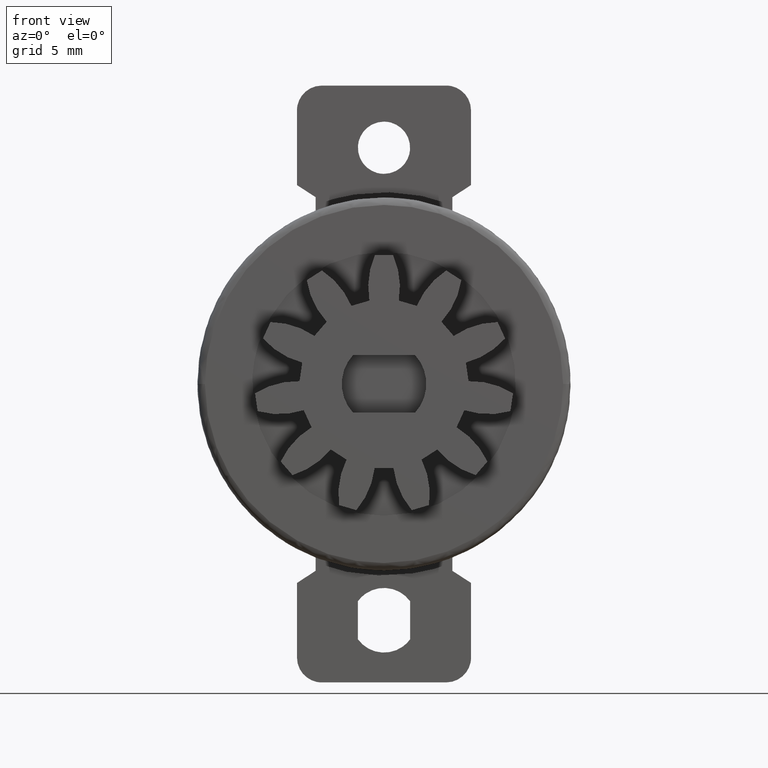
[diagram: clean part render]
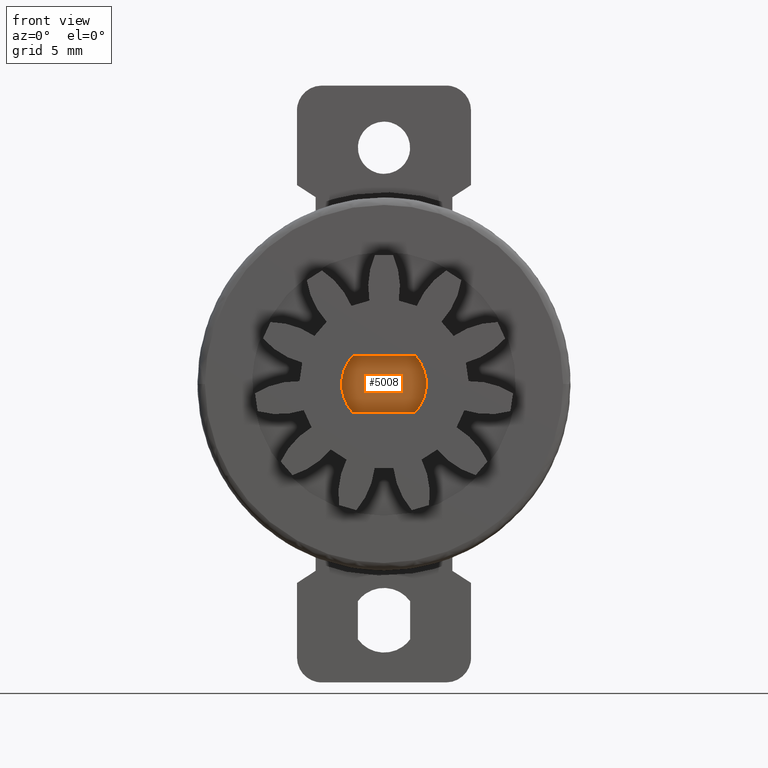
[diagram: same view with one face highlighted and labeled with its STEP entity id]
A machine part, front view. The second image highlights one B-rep face of the part: STEP entity #5008.
In plain terms, the highlighted face is a freeform B-spline surface patch.
Its self-contained STEP definition (entity closure, byte-faithful):
#4957=CARTESIAN_POINT('',(-1.869829993410070,-6.400000000000000,-1.264884995542154));
#4958=CARTESIAN_POINT('',(1.869830084605176,-6.400000000000000,-1.264884995542154));
#4959=CARTESIAN_POINT('',(-1.869829993410070,-6.400000000000000,1.264885057232961));
#4960=CARTESIAN_POINT('',(1.869830084605176,-6.400000000000000,1.264885057232961));
#4961=B_SPLINE_SURFACE_WITH_KNOTS('',1,1,((#4957,#4959),(#4958,#4960)),.UNSPECIFIED.,.F.,.F.,.U.,(2,2),(2,2),(0.0,3.739660078015246),(0.0,2.529770052775114),.UNSPECIFIED.);
#4962=CARTESIAN_POINT('',(1.251998402554874,-6.400000000000000,-1.150000000000000));
#4963=VERTEX_POINT('',#4962);
#4964=CARTESIAN_POINT('',(1.251998402554874,-6.400000000000000,1.150000000000000));
#4965=VERTEX_POINT('',#4964);
#4966=CARTESIAN_POINT('',(1.251998402554883,-6.400000000000000,-1.150000000000009));
#4967=CARTESIAN_POINT('',(2.308309654471234,-6.400000000000001,-4.336809E-016));
#4968=CARTESIAN_POINT('',(1.251998402554884,-6.400000000000000,1.150000000000008));
#4976=(BOUNDED_CURVE()B_SPLINE_CURVE(2,(#4966,#4967,#4968),.UNSPECIFIED.,.F.,.U.)CURVE()GEOMETRIC_REPRESENTATION_ITEM()QUASI_UNIFORM_CURVE()RATIONAL_B_SPLINE_CURVE((1.0,0.736469648561696,1.0))REPRESENTATION_ITEM(''));
#4977=EDGE_CURVE('',#4963,#4965,#4976,.T.);
#4978=ORIENTED_EDGE('',*,*,#4977,.T.);
#4979=CARTESIAN_POINT('',(-1.251998402554904,-6.400000000000000,1.150000000000000));
#4980=VERTEX_POINT('',#4979);
#4981=CARTESIAN_POINT('',(1.251998402554874,-6.400000000000000,1.150000000000000));
#4982=CARTESIAN_POINT('',(-1.251998402554904,-6.400000000000000,1.150000000000000));
#4983=QUASI_UNIFORM_CURVE('',1,(#4981,#4982),.UNSPECIFIED.,.F.,.U.);
#4984=EDGE_CURVE('',#4965,#4980,#4983,.T.);
#4985=ORIENTED_EDGE('',*,*,#4984,.T.);
#4986=CARTESIAN_POINT('',(-1.251998402554902,-6.400000000000000,-1.149999999999988));
#4987=VERTEX_POINT('',#4986);
#4988=CARTESIAN_POINT('',(-1.251998402554897,-6.400000000000000,1.149999999999994));
#4989=CARTESIAN_POINT('',(-2.308309654471203,-6.400000000000002,5.421011E-015));
#4990=CARTESIAN_POINT('',(-1.251998402554903,-6.400000000000000,-1.149999999999988));
#4998=(BOUNDED_CURVE()B_SPLINE_CURVE(2,(#4988,#4989,#4990),.UNSPECIFIED.,.F.,.U.)CURVE()GEOMETRIC_REPRESENTATION_ITEM()QUASI_UNIFORM_CURVE()RATIONAL_B_SPLINE_CURVE((1.0,0.736469648561706,1.0))REPRESENTATION_ITEM(''));
#4999=EDGE_CURVE('',#4980,#4987,#4998,.T.);
#5000=ORIENTED_EDGE('',*,*,#4999,.T.);
#5001=CARTESIAN_POINT('',(-1.251998402554902,-6.400000000000000,-1.149999999999988));
#5002=CARTESIAN_POINT('',(1.251998402554874,-6.400000000000000,-1.150000000000000));
#5003=QUASI_UNIFORM_CURVE('',1,(#5001,#5002),.UNSPECIFIED.,.F.,.U.);
#5004=EDGE_CURVE('',#4987,#4963,#5003,.T.);
#5005=ORIENTED_EDGE('',*,*,#5004,.T.);
#5006=EDGE_LOOP('',(#4978,#4985,#5000,#5005));
#5007=FACE_OUTER_BOUND('',#5006,.T.);
#5008=ADVANCED_FACE('',(#5007),#4961,.T.);